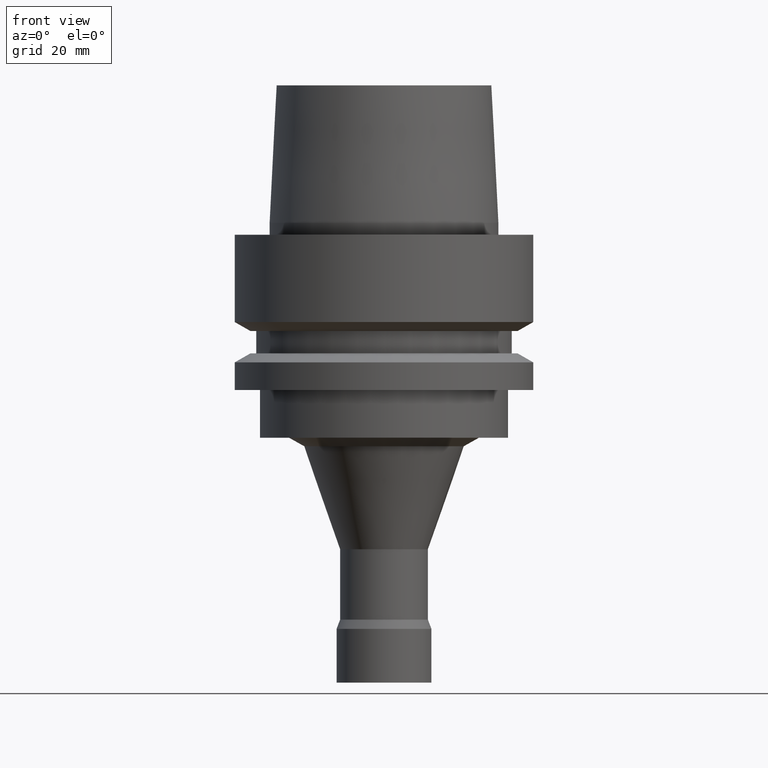
[diagram: clean part render]
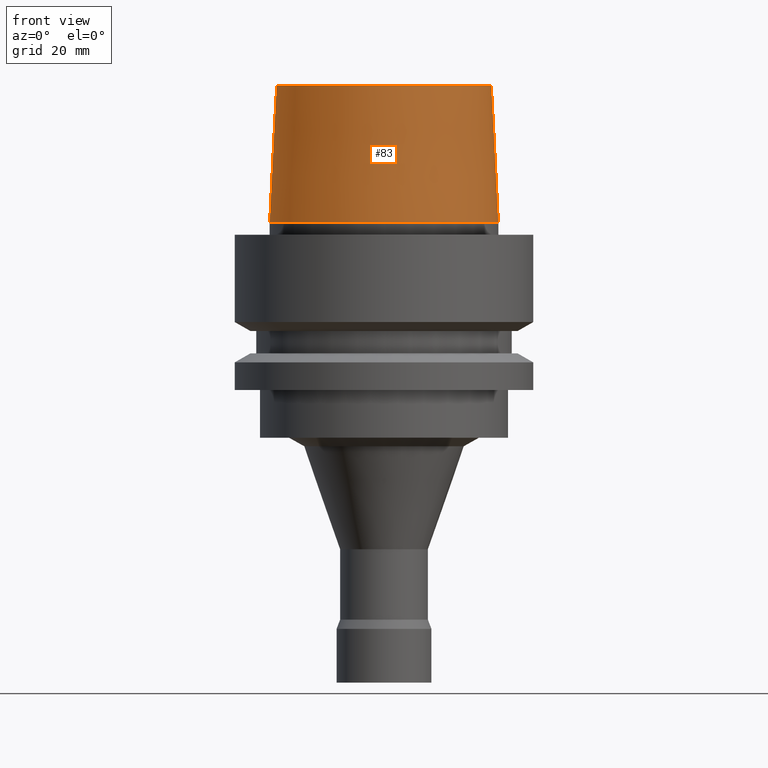
[diagram: same view with one face highlighted and labeled with its STEP entity id]
A machine part, front view. The second image highlights one B-rep face of the part: STEP entity #83.
In plain terms, the highlighted conical surface has half-angle 2.862 deg.
Its self-contained STEP definition (entity closure, byte-faithful):
#83=ADVANCED_FACE('',(#118,#119),#120,.T.);
#118=FACE_BOUND('',#176,.T.);
#119=FACE_BOUND('',#177,.T.);
#120=CONICAL_SURFACE('',#178,18.5750000005215,0.049958395676703);
#176=EDGE_LOOP('',(#250));
#177=EDGE_LOOP('',(#251));
#178=AXIS2_PLACEMENT_3D('',#252,#253,#254);
#250=ORIENTED_EDGE('',*,*,#318,.F.);
#251=ORIENTED_EDGE('',*,*,#317,.T.);
#252=CARTESIAN_POINT('',(-8.26636589424463E-016,-1.65327317884893E-015,13.5));
#253=DIRECTION('',(6.12323399573677E-017,1.22464679914735E-016,-1.0));
#254=DIRECTION('',(-1.23259516440783E-032,1.0,1.22464679914735E-016));
#317=EDGE_CURVE('',#343,#343,#344,.T.);
#318=EDGE_CURVE('',#345,#345,#346,.T.);
#343=VERTEX_POINT('',#381);
#344=CIRCLE('',#382,18.0000000010431);
#345=VERTEX_POINT('',#383);
#346=CIRCLE('',#384,19.15);
#381=CARTESIAN_POINT('',(-1.53080849893419E-015,18.0000000010431,25.0));
#382=AXIS2_PLACEMENT_3D('',#426,#427,#428);
#383=CARTESIAN_POINT('',(-1.22464679914736E-016,19.15,2.0));
#384=AXIS2_PLACEMENT_3D('',#429,#430,#431);
#426=CARTESIAN_POINT('',(-1.53080849893419E-015,-3.06161699786838E-015,25.0));
#427=DIRECTION('',(6.12323399573677E-017,1.22464679914735E-016,-1.0));
#428=DIRECTION('',(-1.23259516440783E-032,1.0,1.22464679914735E-016));
#429=CARTESIAN_POINT('',(-1.22464679914735E-016,-2.44929359829471E-016,2.0));
#430=DIRECTION('',(6.12323399573677E-017,1.22464679914735E-016,-1.0));
#431=DIRECTION('',(-1.23259516440783E-032,1.0,1.22464679914735E-016));